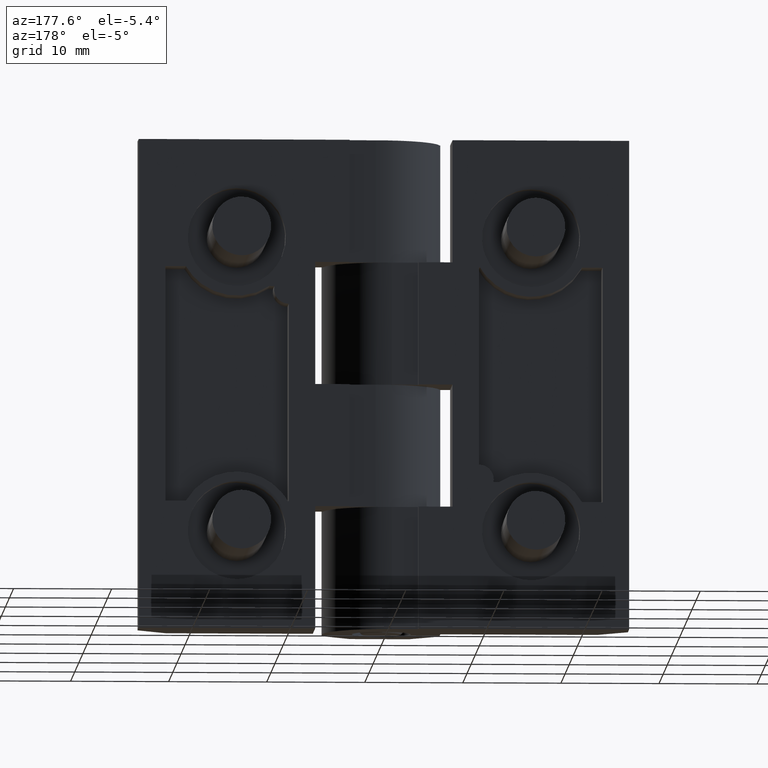
[diagram: clean part render]
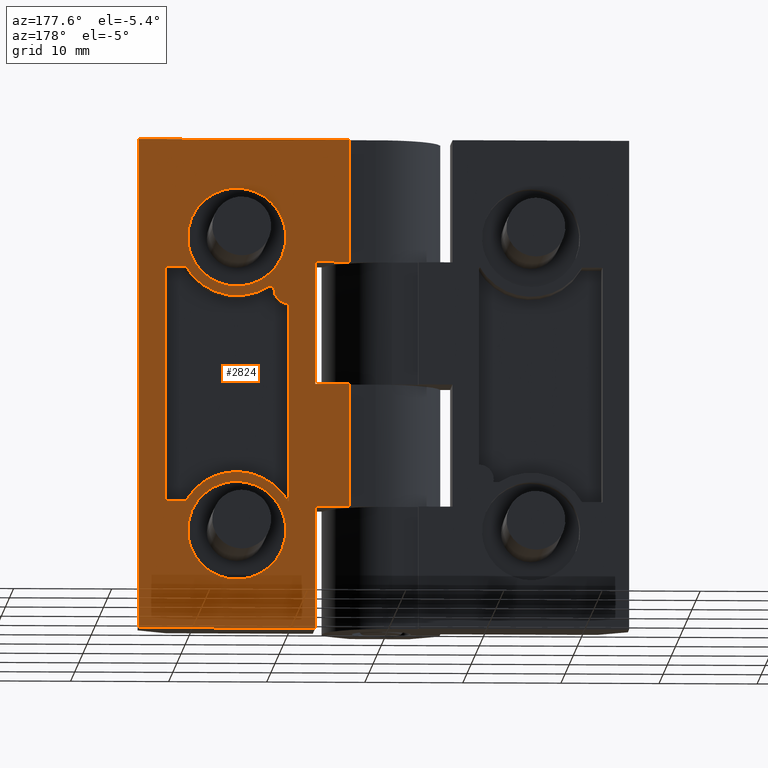
[diagram: same view with one face highlighted and labeled with its STEP entity id]
A machine part, auxiliary view. The second image highlights one B-rep face of the part: STEP entity #2824.
In plain terms, the highlighted face is a freeform B-spline surface patch.
Its self-contained STEP definition (entity closure, byte-faithful):
#881=CARTESIAN_POINT('',(10.015413331339390,6.500000000000000,40.392295478670142));
#882=VERTEX_POINT('',#881);
#888=CARTESIAN_POINT('',(14.999999999999821,6.500000000000000,44.999999999964700));
#889=VERTEX_POINT('',#888);
#890=CARTESIAN_POINT('',(14.999999999999821,6.500000000000000,44.999999999964700));
#891=CARTESIAN_POINT('',(10.378047541831949,6.500000000000000,44.999999999964700));
#892=CARTESIAN_POINT('',(10.015413331339392,6.500000000000001,40.392295478670142));
#900=(BOUNDED_CURVE()B_SPLINE_CURVE(2,(#890,#891,#892),.UNSPECIFIED.,.F.,.U.)B_SPLINE_CURVE_WITH_KNOTS((3,3),(0.0,0.236331300628213),.UNSPECIFIED.)CURVE()GEOMETRIC_REPRESENTATION_ITEM()RATIONAL_B_SPLINE_CURVE((1.0,0.723120658610532,0.969723356162312))REPRESENTATION_ITEM(''));
#901=EDGE_CURVE('',#889,#882,#900,.T.);
#903=CARTESIAN_POINT('',(19.984586668660249,6.500000000000000,39.607704521259272));
#904=VERTEX_POINT('',#903);
#905=CARTESIAN_POINT('',(19.984586668660253,6.500000000000000,39.607704521259265));
#906=CARTESIAN_POINT('',(19.999999999999819,6.499999999999999,39.803549464859842));
#907=CARTESIAN_POINT('',(19.999999999999819,6.500000000000000,39.999999999964700));
#908=CARTESIAN_POINT('',(19.999999999999812,6.500000000000001,44.999999999964700));
#909=CARTESIAN_POINT('',(14.999999999999821,6.500000000000000,44.999999999964700));
#917=(BOUNDED_CURVE()B_SPLINE_CURVE(2,(#905,#906,#907,#908,#909),.UNSPECIFIED.,.F.,.U.)B_SPLINE_CURVE_WITH_KNOTS((3,2,3),(0.736331300628213,0.750000000000000,1.0),.UNSPECIFIED.)CURVE()GEOMETRIC_REPRESENTATION_ITEM()RATIONAL_B_SPLINE_CURVE((0.969723356162312,0.983986122576016,1.0,0.707106781186548,1.0))REPRESENTATION_ITEM(''));
#918=EDGE_CURVE('',#904,#889,#917,.T.);
#994=CARTESIAN_POINT('',(14.999999999999821,6.500000000000000,34.999999999964707));
#995=VERTEX_POINT('',#994);
#996=CARTESIAN_POINT('',(14.999999999999821,6.500000000000000,34.999999999964707));
#997=CARTESIAN_POINT('',(19.621952458167730,6.500000000000000,34.999999999964707));
#998=CARTESIAN_POINT('',(19.984586668660249,6.500000000000000,39.607704521259265));
#1006=(BOUNDED_CURVE()B_SPLINE_CURVE(2,(#996,#997,#998),.UNSPECIFIED.,.F.,.U.)B_SPLINE_CURVE_WITH_KNOTS((3,3),(0.500000000000000,0.736331300628214),.UNSPECIFIED.)CURVE()GEOMETRIC_REPRESENTATION_ITEM()RATIONAL_B_SPLINE_CURVE((1.0,0.723120658610531,0.969723356162314))REPRESENTATION_ITEM(''));
#1007=EDGE_CURVE('',#995,#904,#1006,.T.);
#1009=CARTESIAN_POINT('',(10.015413331339394,6.500000000000001,40.392295478670135));
#1010=CARTESIAN_POINT('',(9.999999999999822,6.500000000000000,40.196450535069566));
#1011=CARTESIAN_POINT('',(9.999999999999822,6.500000000000000,39.999999999964700));
#1012=CARTESIAN_POINT('',(9.999999999999822,6.500000000000001,34.999999999964707));
#1013=CARTESIAN_POINT('',(14.999999999999821,6.500000000000000,34.999999999964707));
#1021=(BOUNDED_CURVE()B_SPLINE_CURVE(2,(#1009,#1010,#1011,#1012,#1013),.UNSPECIFIED.,.F.,.U.)B_SPLINE_CURVE_WITH_KNOTS((3,2,3),(0.236331300628213,0.250000000000000,0.500000000000000),.UNSPECIFIED.)CURVE()GEOMETRIC_REPRESENTATION_ITEM()RATIONAL_B_SPLINE_CURVE((0.969723356162312,0.983986122576016,1.0,0.707106781186548,1.0))REPRESENTATION_ITEM(''));
#1022=EDGE_CURVE('',#882,#995,#1021,.T.);
#1063=CARTESIAN_POINT('',(10.015413331339390,6.500000000000000,10.392295478670430));
#1064=VERTEX_POINT('',#1063);
#1070=CARTESIAN_POINT('',(14.999999999999821,6.500000000000000,14.999999999965000));
#1071=VERTEX_POINT('',#1070);
#1072=CARTESIAN_POINT('',(14.999999999999821,6.500000000000000,14.999999999965000));
#1073=CARTESIAN_POINT('',(10.378047541831949,6.500000000000000,14.999999999964999));
#1074=CARTESIAN_POINT('',(10.015413331339392,6.500000000000001,10.392295478670430));
#1082=(BOUNDED_CURVE()B_SPLINE_CURVE(2,(#1072,#1073,#1074),.UNSPECIFIED.,.F.,.U.)B_SPLINE_CURVE_WITH_KNOTS((3,3),(0.0,0.236331300628213),.UNSPECIFIED.)CURVE()GEOMETRIC_REPRESENTATION_ITEM()RATIONAL_B_SPLINE_CURVE((1.0,0.723120658610532,0.969723356162312))REPRESENTATION_ITEM(''));
#1083=EDGE_CURVE('',#1071,#1064,#1082,.T.);
#1085=CARTESIAN_POINT('',(19.984586668660249,6.500000000000000,9.607704521259567));
#1086=VERTEX_POINT('',#1085);
#1087=CARTESIAN_POINT('',(19.984586668660246,6.500000000000001,9.607704521259567));
#1088=CARTESIAN_POINT('',(19.999999999999822,6.500000000000000,9.803549464860137));
#1089=CARTESIAN_POINT('',(19.999999999999819,6.500000000000000,9.999999999964999));
#1090=CARTESIAN_POINT('',(19.999999999999812,6.500000000000001,14.999999999965008));
#1091=CARTESIAN_POINT('',(14.999999999999821,6.500000000000000,14.999999999965000));
#1099=(BOUNDED_CURVE()B_SPLINE_CURVE(2,(#1087,#1088,#1089,#1090,#1091),.UNSPECIFIED.,.F.,.U.)B_SPLINE_CURVE_WITH_KNOTS((3,2,3),(0.736331300628213,0.750000000000000,1.0),.UNSPECIFIED.)CURVE()GEOMETRIC_REPRESENTATION_ITEM()RATIONAL_B_SPLINE_CURVE((0.969723356162312,0.983986122576016,1.0,0.707106781186548,1.0))REPRESENTATION_ITEM(''));
#1100=EDGE_CURVE('',#1086,#1071,#1099,.T.);
#1176=CARTESIAN_POINT('',(14.999999999999821,6.500000000000000,4.999999999964999));
#1177=VERTEX_POINT('',#1176);
#1178=CARTESIAN_POINT('',(14.999999999999821,6.500000000000000,4.999999999964999));
#1179=CARTESIAN_POINT('',(19.621952458167662,6.500000000000001,4.999999999964999));
#1180=CARTESIAN_POINT('',(19.984586668660249,6.500000000000000,9.607704521259567));
#1188=(BOUNDED_CURVE()B_SPLINE_CURVE(2,(#1178,#1179,#1180),.UNSPECIFIED.,.F.,.U.)B_SPLINE_CURVE_WITH_KNOTS((3,3),(0.500000000000000,0.736331300628212),.UNSPECIFIED.)CURVE()GEOMETRIC_REPRESENTATION_ITEM()RATIONAL_B_SPLINE_CURVE((1.0,0.723120658610533,0.969723356162310))REPRESENTATION_ITEM(''));
#1189=EDGE_CURVE('',#1177,#1086,#1188,.T.);
#1191=CARTESIAN_POINT('',(10.015413331339394,6.500000000000001,10.392295478670430));
#1192=CARTESIAN_POINT('',(9.999999999999822,6.500000000000000,10.196450535069859));
#1193=CARTESIAN_POINT('',(9.999999999999822,6.500000000000000,9.999999999964999));
#1194=CARTESIAN_POINT('',(9.999999999999822,6.500000000000001,4.999999999964999));
#1195=CARTESIAN_POINT('',(14.999999999999821,6.500000000000000,4.999999999964999));
#1203=(BOUNDED_CURVE()B_SPLINE_CURVE(2,(#1191,#1192,#1193,#1194,#1195),.UNSPECIFIED.,.F.,.U.)B_SPLINE_CURVE_WITH_KNOTS((3,2,3),(0.236331300628213,0.250000000000000,0.500000000000000),.UNSPECIFIED.)CURVE()GEOMETRIC_REPRESENTATION_ITEM()RATIONAL_B_SPLINE_CURVE((0.969723356162312,0.983986122576016,1.0,0.707106781186548,1.0))REPRESENTATION_ITEM(''));
#1204=EDGE_CURVE('',#1064,#1177,#1203,.T.);
#1712=CARTESIAN_POINT('',(9.803847577273469,6.500000000000000,13.000000000000121));
#1713=VERTEX_POINT('',#1712);
#1714=CARTESIAN_POINT('',(9.700000000000001,6.500000000000000,13.0));
#1715=VERTEX_POINT('',#1714);
#1716=CARTESIAN_POINT('',(9.803847577273469,6.500000000000000,13.000000000000121));
#1717=CARTESIAN_POINT('',(9.700000000000001,6.500000000000000,13.0));
#1718=QUASI_UNIFORM_CURVE('',1,(#1716,#1717),.UNSPECIFIED.,.F.,.U.);
#1719=EDGE_CURVE('',#1713,#1715,#1718,.T.);
#1749=CARTESIAN_POINT('',(20.196152422727000,6.500000000000000,13.0));
#1750=VERTEX_POINT('',#1749);
#1751=CARTESIAN_POINT('',(20.196152422727021,6.500000000000000,13.000000000000011));
#1752=CARTESIAN_POINT('',(18.464101615164857,6.500000000000000,16.000000000034905));
#1753=CARTESIAN_POINT('',(15.000000000000250,6.500000000000000,16.000000000034898));
#1754=CARTESIAN_POINT('',(11.535898384835697,6.500000000000000,16.000000000034905));
#1755=CARTESIAN_POINT('',(9.803847577273469,6.500000000000000,13.000000000000121));
#1763=(BOUNDED_CURVE()B_SPLINE_CURVE(2,(#1751,#1752,#1753,#1754,#1755),.UNSPECIFIED.,.F.,.U.)B_SPLINE_CURVE_WITH_KNOTS((3,2,3),(0.0,0.500000000000000,1.0),.UNSPECIFIED.)CURVE()GEOMETRIC_REPRESENTATION_ITEM()RATIONAL_B_SPLINE_CURVE((1.0,0.866025403782760,1.0,0.866025403782760,1.0))REPRESENTATION_ITEM(''));
#1764=EDGE_CURVE('',#1750,#1713,#1763,.T.);
#1781=CARTESIAN_POINT('',(22.300000000000001,6.500000000000000,13.0));
#1782=VERTEX_POINT('',#1781);
#1783=CARTESIAN_POINT('',(22.300000000000001,6.500000000000000,13.0));
#1784=CARTESIAN_POINT('',(20.196152422727000,6.500000000000000,13.0));
#1785=QUASI_UNIFORM_CURVE('',1,(#1783,#1784),.UNSPECIFIED.,.F.,.U.);
#1786=EDGE_CURVE('',#1782,#1750,#1785,.T.);
#1803=CARTESIAN_POINT('',(22.300000000000001,6.500000000000000,37.0));
#1804=VERTEX_POINT('',#1803);
#1805=CARTESIAN_POINT('',(22.300000000000001,6.500000000000000,37.0));
#1806=CARTESIAN_POINT('',(22.300000000000001,6.500000000000000,13.0));
#1807=QUASI_UNIFORM_CURVE('',1,(#1805,#1806),.UNSPECIFIED.,.F.,.U.);
#1808=EDGE_CURVE('',#1804,#1782,#1807,.T.);
#1825=CARTESIAN_POINT('',(20.196152422686449,6.500000000000000,37.0));
#1826=VERTEX_POINT('',#1825);
#1827=CARTESIAN_POINT('',(20.196152422686449,6.500000000000000,37.0));
#1828=CARTESIAN_POINT('',(22.300000000000001,6.500000000000000,37.0));
#1829=QUASI_UNIFORM_CURVE('',1,(#1827,#1828),.UNSPECIFIED.,.F.,.U.);
#1830=EDGE_CURVE('',#1826,#1804,#1829,.T.);
#1856=CARTESIAN_POINT('',(11.683375209697500,6.500000000000000,35.0));
#1857=VERTEX_POINT('',#1856);
#1858=CARTESIAN_POINT('',(11.683375209697500,6.500000000000000,35.0));
#1859=CARTESIAN_POINT('',(13.845962745153958,6.500000000000000,33.565501713751274));
#1860=CARTESIAN_POINT('',(16.372281323280209,6.500000000000000,34.159037410720188));
#1861=CARTESIAN_POINT('',(18.898599901406449,6.500000000000000,34.752573107689116));
#1862=CARTESIAN_POINT('',(20.196152422686389,6.500000000000000,37.000000000000043));
#1870=(BOUNDED_CURVE()B_SPLINE_CURVE(2,(#1858,#1859,#1860,#1861,#1862),.UNSPECIFIED.,.F.,.U.)B_SPLINE_CURVE_WITH_KNOTS((3,2,3),(0.0,0.500000000000000,1.0),.UNSPECIFIED.)CURVE()GEOMETRIC_REPRESENTATION_ITEM()RATIONAL_B_SPLINE_CURVE((1.0,0.917828587018774,1.0,0.917828587018774,1.0))REPRESENTATION_ITEM(''));
#1871=EDGE_CURVE('',#1857,#1826,#1870,.T.);
#1888=CARTESIAN_POINT('',(11.168331245226300,6.500000000000000,35.0));
#1889=VERTEX_POINT('',#1888);
#1890=CARTESIAN_POINT('',(11.168331245226300,6.500000000000000,35.0));
#1891=CARTESIAN_POINT('',(11.683375209697500,6.500000000000000,35.0));
#1892=QUASI_UNIFORM_CURVE('',1,(#1890,#1891),.UNSPECIFIED.,.F.,.U.);
#1893=EDGE_CURVE('',#1889,#1857,#1892,.T.);
#1919=CARTESIAN_POINT('',(9.700000000000001,6.500000000000000,33.193400335466698));
#1920=VERTEX_POINT('',#1919);
#1921=CARTESIAN_POINT('',(9.700000000000001,6.500000000000000,33.193400335466698));
#1922=CARTESIAN_POINT('',(10.413811930884362,6.499999999999999,33.193400335466698));
#1923=CARTESIAN_POINT('',(10.864023087571720,6.500000000000000,33.747329380622404));
#1924=CARTESIAN_POINT('',(11.314234244259072,6.499999999999999,34.301258425778094));
#1925=CARTESIAN_POINT('',(11.168331245226300,6.500000000000000,35.0));
#1933=(BOUNDED_CURVE()B_SPLINE_CURVE(2,(#1921,#1922,#1923,#1924,#1925),.UNSPECIFIED.,.F.,.U.)B_SPLINE_CURVE_WITH_KNOTS((3,2,3),(0.0,0.500000000000000,1.0),.UNSPECIFIED.)CURVE()GEOMETRIC_REPRESENTATION_ITEM()RATIONAL_B_SPLINE_CURVE((1.0,0.902971198293778,1.0,0.902971198293778,1.0))REPRESENTATION_ITEM(''));
#1934=EDGE_CURVE('',#1920,#1889,#1933,.T.);
#1951=CARTESIAN_POINT('',(9.700000000000001,6.500000000000000,13.0));
#1952=CARTESIAN_POINT('',(9.700000000000001,6.500000000000000,33.193400335466698));
#1953=QUASI_UNIFORM_CURVE('',1,(#1951,#1952),.UNSPECIFIED.,.F.,.U.);
#1954=EDGE_CURVE('',#1715,#1920,#1953,.T.);
#1976=CARTESIAN_POINT('',(7.000000000028010,6.500000000000000,37.500000000000000));
#1977=VERTEX_POINT('',#1976);
#1983=CARTESIAN_POINT('',(7.000000000027300,6.500000000000000,25.0));
#1984=VERTEX_POINT('',#1983);
#1985=CARTESIAN_POINT('',(7.000000000028010,6.500000000000000,37.500000000000000));
#1986=CARTESIAN_POINT('',(7.000000000027300,6.500000000000000,25.0));
#1987=QUASI_UNIFORM_CURVE('',1,(#1985,#1986),.UNSPECIFIED.,.F.,.U.);
#1988=EDGE_CURVE('',#1977,#1984,#1987,.T.);
#2011=CARTESIAN_POINT('',(3.500000000028505,6.499999999912309,25.0));
#2012=VERTEX_POINT('',#2011);
#2013=CARTESIAN_POINT('',(7.000000000027300,6.500000000000000,25.0));
#2014=CARTESIAN_POINT('',(3.500000000028505,6.499999999912309,25.0));
#2015=QUASI_UNIFORM_CURVE('',1,(#2013,#2014),.UNSPECIFIED.,.F.,.U.);
#2016=EDGE_CURVE('',#1984,#2012,#2015,.T.);
#2158=CARTESIAN_POINT('',(3.500000000028505,6.500000000000000,37.500000000000000));
#2159=VERTEX_POINT('',#2158);
#2165=CARTESIAN_POINT('',(3.500000000028505,6.500000000000000,37.500000000000000));
#2166=CARTESIAN_POINT('',(7.000000000028010,6.500000000000000,37.500000000000000));
#2167=QUASI_UNIFORM_CURVE('',1,(#2165,#2166),.UNSPECIFIED.,.F.,.U.);
#2168=EDGE_CURVE('',#2159,#1977,#2167,.T.);
#2251=CARTESIAN_POINT('',(3.500000000028505,6.500000000000000,12.500000000000000));
#2252=VERTEX_POINT('',#2251);
#2258=CARTESIAN_POINT('',(7.000000000026700,6.500000000000000,12.500000000000000));
#2259=VERTEX_POINT('',#2258);
#2260=CARTESIAN_POINT('',(3.500000000028505,6.500000000000000,12.500000000000000));
#2261=CARTESIAN_POINT('',(7.000000000026700,6.500000000000000,12.500000000000000));
#2262=QUASI_UNIFORM_CURVE('',1,(#2260,#2261),.UNSPECIFIED.,.F.,.U.);
#2263=EDGE_CURVE('',#2252,#2259,#2262,.T.);
#2292=CARTESIAN_POINT('',(7.000000000028010,6.500000000000000,0.0));
#2293=VERTEX_POINT('',#2292);
#2294=CARTESIAN_POINT('',(7.000000000026700,6.500000000000000,12.500000000000000));
#2295=CARTESIAN_POINT('',(7.000000000028010,6.500000000000000,0.0));
#2296=QUASI_UNIFORM_CURVE('',1,(#2294,#2295),.UNSPECIFIED.,.F.,.U.);
#2297=EDGE_CURVE('',#2259,#2293,#2296,.T.);
#2313=CARTESIAN_POINT('',(25.000000000028500,6.499999999897190,0.0));
#2314=VERTEX_POINT('',#2313);
#2315=CARTESIAN_POINT('',(7.000000000028010,6.500000000000000,0.0));
#2316=CARTESIAN_POINT('',(25.000000000028500,6.499999999897190,0.0));
#2317=QUASI_UNIFORM_CURVE('',1,(#2315,#2316),.UNSPECIFIED.,.F.,.U.);
#2318=EDGE_CURVE('',#2293,#2314,#2317,.T.);
#2347=CARTESIAN_POINT('',(3.500000000028505,6.499999999912309,50.0));
#2348=VERTEX_POINT('',#2347);
#2349=CARTESIAN_POINT('',(25.000000000028500,6.499999999897190,50.0));
#2350=VERTEX_POINT('',#2349);
#2351=CARTESIAN_POINT('',(3.500000000028505,6.499999999912309,50.0));
#2352=CARTESIAN_POINT('',(25.000000000028500,6.499999999897190,50.0));
#2353=QUASI_UNIFORM_CURVE('',1,(#2351,#2352),.UNSPECIFIED.,.F.,.U.);
#2354=EDGE_CURVE('',#2348,#2350,#2353,.T.);
#2454=CARTESIAN_POINT('',(3.500000000028505,6.499999999912309,25.0));
#2455=CARTESIAN_POINT('',(3.500000000028505,6.500000000000000,12.500000000000000));
#2456=QUASI_UNIFORM_CURVE('',1,(#2454,#2455),.UNSPECIFIED.,.F.,.U.);
#2457=EDGE_CURVE('',#2012,#2252,#2456,.T.);
#2637=CARTESIAN_POINT('',(25.000000000028500,6.499999999897190,50.0));
#2638=CARTESIAN_POINT('',(25.000000000028500,6.499999999897190,0.0));
#2639=QUASI_UNIFORM_CURVE('',1,(#2637,#2638),.UNSPECIFIED.,.F.,.U.);
#2640=EDGE_CURVE('',#2350,#2314,#2639,.T.);
#2659=CARTESIAN_POINT('',(3.500000000028505,6.499999999912309,50.0));
#2660=CARTESIAN_POINT('',(3.500000000028505,6.500000000000000,37.500000000000000));
#2661=QUASI_UNIFORM_CURVE('',1,(#2659,#2660),.UNSPECIFIED.,.F.,.U.);
#2662=EDGE_CURVE('',#2348,#2159,#2661,.T.);
#2784=CARTESIAN_POINT('',(2.426075041699678,6.500000000000000,-2.497499903090299));
#2785=CARTESIAN_POINT('',(2.426075041699678,6.500000000000000,52.497501244194808));
#2786=CARTESIAN_POINT('',(26.073925535032270,6.500000000000000,-2.497499903090299));
#2787=CARTESIAN_POINT('',(26.073925535032270,6.500000000000000,52.497501244194808));
#2788=B_SPLINE_SURFACE_WITH_KNOTS('',1,1,((#2784,#2786),(#2785,#2787)),.UNSPECIFIED.,.F.,.F.,.U.,(2,2),(2,2),(0.0,54.995001147285109),(0.0,23.647850493332591),.UNSPECIFIED.);
#2789=ORIENTED_EDGE('',*,*,#2168,.F.);
#2790=ORIENTED_EDGE('',*,*,#2662,.F.);
#2791=ORIENTED_EDGE('',*,*,#2354,.T.);
#2792=ORIENTED_EDGE('',*,*,#2640,.T.);
#2793=ORIENTED_EDGE('',*,*,#2318,.F.);
#2794=ORIENTED_EDGE('',*,*,#2297,.F.);
#2795=ORIENTED_EDGE('',*,*,#2263,.F.);
#2796=ORIENTED_EDGE('',*,*,#2457,.F.);
#2797=ORIENTED_EDGE('',*,*,#2016,.F.);
#2798=ORIENTED_EDGE('',*,*,#1988,.F.);
#2799=EDGE_LOOP('',(#2789,#2790,#2791,#2792,#2793,#2794,#2795,#2796,#2797,#2798));
#2800=FACE_OUTER_BOUND('',#2799,.T.);
#2801=ORIENTED_EDGE('',*,*,#1954,.F.);
#2802=ORIENTED_EDGE('',*,*,#1719,.F.);
#2803=ORIENTED_EDGE('',*,*,#1764,.F.);
#2804=ORIENTED_EDGE('',*,*,#1786,.F.);
#2805=ORIENTED_EDGE('',*,*,#1808,.F.);
#2806=ORIENTED_EDGE('',*,*,#1830,.F.);
#2807=ORIENTED_EDGE('',*,*,#1871,.F.);
#2808=ORIENTED_EDGE('',*,*,#1893,.F.);
#2809=ORIENTED_EDGE('',*,*,#1934,.F.);
#2810=EDGE_LOOP('',(#2801,#2802,#2803,#2804,#2805,#2806,#2807,#2808,#2809));
#2811=FACE_BOUND('',#2810,.T.);
#2812=ORIENTED_EDGE('',*,*,#1189,.T.);
#2813=ORIENTED_EDGE('',*,*,#1100,.T.);
#2814=ORIENTED_EDGE('',*,*,#1083,.T.);
#2815=ORIENTED_EDGE('',*,*,#1204,.T.);
#2816=EDGE_LOOP('',(#2812,#2813,#2814,#2815));
#2817=FACE_BOUND('',#2816,.T.);
#2818=ORIENTED_EDGE('',*,*,#1007,.T.);
#2819=ORIENTED_EDGE('',*,*,#918,.T.);
#2820=ORIENTED_EDGE('',*,*,#901,.T.);
#2821=ORIENTED_EDGE('',*,*,#1022,.T.);
#2822=EDGE_LOOP('',(#2818,#2819,#2820,#2821));
#2823=FACE_BOUND('',#2822,.T.);
#2824=ADVANCED_FACE('',(#2800,#2811,#2817,#2823),#2788,.T.);